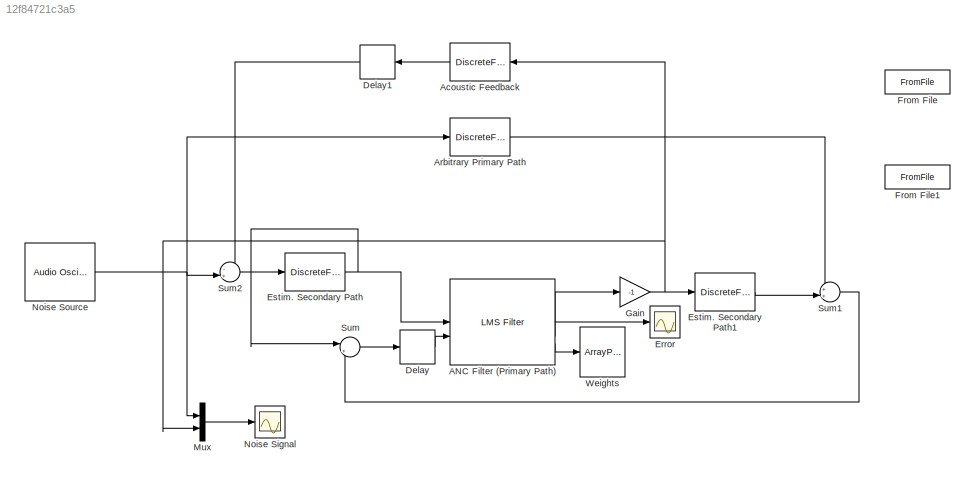
MODEL slx_12f84721c3a5
KIND model
CONFIG AbsTol = auto
CONFIG EnableMultiTasking = off
CONFIG FixedStep = auto
CONFIG MaxStep = auto
CONFIG MinStep = auto
CONFIG RelTol = 1e-3
CONFIG SampleTimeConstraint = Unconstrained
CONFIG SolverName = VariableStepAuto
CONFIG StartTime = 0.0
CONFIG StopTime = 10.0
BLOCK [Reference] ANC Filter (Primary Path)  REF=dspadpt3/LMS Filter
  SourceBlock = dspadpt3/LMS Filter
  SourceType = LMS Filter
BLOCK [DiscreteFir] Acoustic Feedback
  InputPortMap = u0
  OutputPortMap = o0
BLOCK [DiscreteFir] Arbitrary Primary Path
  InputPortMap = u0
  OutputPortMap = o0
BLOCK [Delay] Delay
  DelayLength = 1
  InitialCondition = 0
  InputPortMap = u0
BLOCK [Delay] Delay1
  DelayLength = 1
  InitialCondition = 0
  InputPortMap = u0
BLOCK [Scope] Error
  Floating = off
  NumInputPorts = 1
  ScopeSpecificationString = Simulink.scopes.TimeScopeBlockCfg('CurrentConfiguration', extmgr.ConfigurationSet(extmgr.Configuration('Core','General UI',true),extmgr.Configuration('Core','Source UI',true),extmgr.Configuration('Sources','WiredSimulink',true),extmgr.Configuration('Visuals','Time Domain',true,'SerializedDisplays',{struct('MinYLimReal','-0.85607','MaxYLimReal','0.79034','YLabelReal','','MinYLimMag','0.00000','MaxY...<+1745ch>
BLOCK [DiscreteFir] Estim. Secondary Path
  InputPortMap = u0
  OutputPortMap = o0
BLOCK [DiscreteFir] Estim. Secondary Path1
  InputPortMap = u0
  OutputPortMap = o0
BLOCK [FromFile] From File
  Commented = on
  FileName = D:\feedbackcoeffs.mat
  SampleTime = 0
BLOCK [FromFile] From File1
  Commented = on
  FileName = D:\secondarycoeffs.mat
  SampleTime = 0
BLOCK [Gain] Gain
  Gain = -1
BLOCK [Mux] Mux
  DisplayOption = bar
  Inputs = 2
BLOCK [Scope] Noise Signal
  Floating = off
  NumInputPorts = 1
  ScopeSpecificationString = Simulink.scopes.TimeScopeBlockCfg('CurrentConfiguration', extmgr.ConfigurationSet(extmgr.Configuration('Core','General UI',true),extmgr.Configuration('Core','Source UI',true),extmgr.Configuration('Sources','WiredSimulink',true,'DataLoggingVariableName','ScopeData2'),extmgr.Configuration('Visuals','Time Domain',true,'SerializedDisplays',{struct('MinYLimReal','-2.29184','MaxYLimReal','2.29185','YLab...<+1743ch>
BLOCK [Reference] Noise Source  REF=audiosources/Audio Oscillator
  SourceBlock = audiosources/Audio Oscillator
  SourceType = audio.simulink.AudioOscillator
BLOCK [Sum] Sum
  Inputs = |++
BLOCK [Sum] Sum1
  Inputs = ++|
BLOCK [Sum] Sum2
  Inputs = -+|
BLOCK [ArrayPlot] Weights
  GraphicalSettings = {"Style":{"BackgroundColor":[0.12941176470588237,0.12941176470588237,0.12941176470588237],"AxesColor":[0.07058823529411765,0.07058823529411765,0.07058823529411765],"LabelsColor":[0.8509803921568627,0.8509803921568627,0.8509803921568627],"PreserveColors":false,"Visible":[true],"LineStyle":["-"],"LineColor":[[1,1,0.06666666666666667]],"LineWidth":[1.5],"Marker":["o"],"FontSize":"small"},"Cursors":{"...<+534ch>
  ScopeFrameLocation = window
  WasSavedAsWebScope = on
  WindowPosition = [368.000000,182.000000,800.000000,500.000000,]
  YLimits = [-0.0551 0.1188]
LINE ANC Filter (Primary Path):1 -> Gain:1
LINE ANC Filter (Primary Path):2 -> Error:1
LINE ANC Filter (Primary Path):3 -> Weights:1
LINE Acoustic Feedback:1 -> Delay1:1
LINE Arbitrary Primary Path:1 -> Sum1:1
LINE Delay1:1 -> Sum2:1
LINE Delay:1 -> ANC Filter (Primary Path):2
LINE Estim. Secondary Path1:1 -> Sum1:2
NET Estim. Secondary Path:1 -> ANC Filter (Primary Path):1, Sum:1
NET Gain:1 -> Acoustic Feedback:1, Estim. Secondary Path1:1, Mux:2
LINE Mux:1 -> Noise Signal:1
NET Noise Source:1 -> Arbitrary Primary Path:1, Mux:1, Sum2:2
LINE Sum1:1 -> Sum:2
LINE Sum2:1 -> Estim. Secondary Path:1
LINE Sum:1 -> Delay:1
note: NET lines group one-source signal fan-out (src -> all destinations, sorted); 1:1 wires keep LINE
